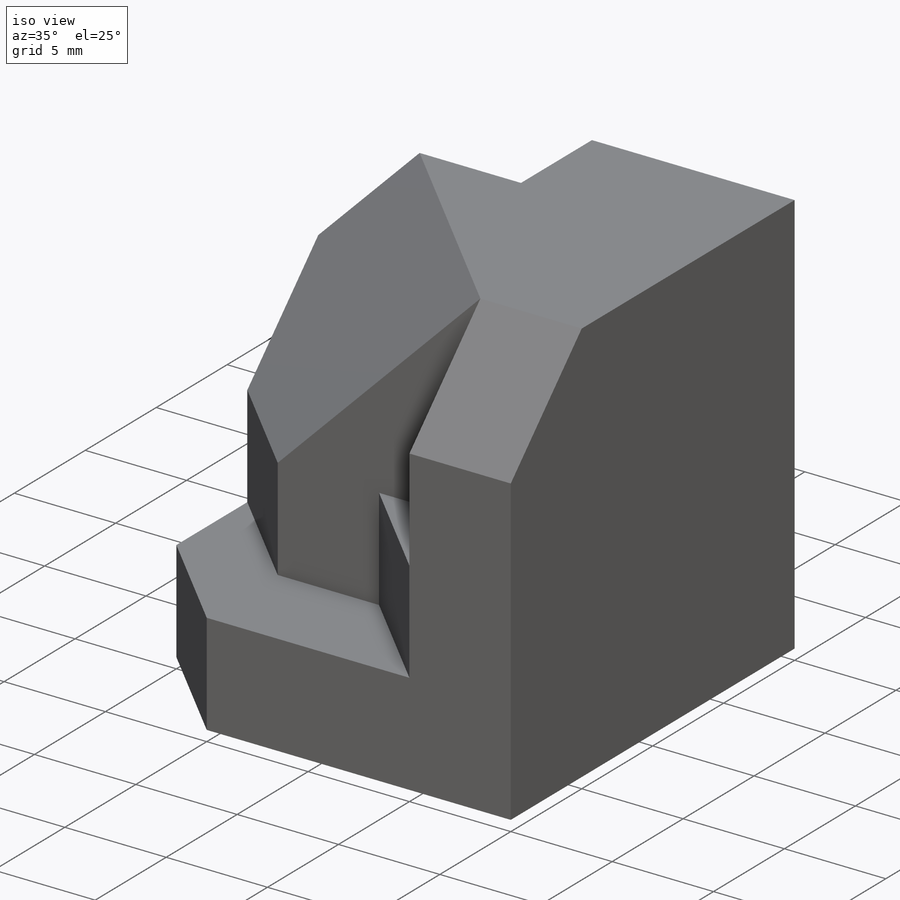
[diagram: iso view]
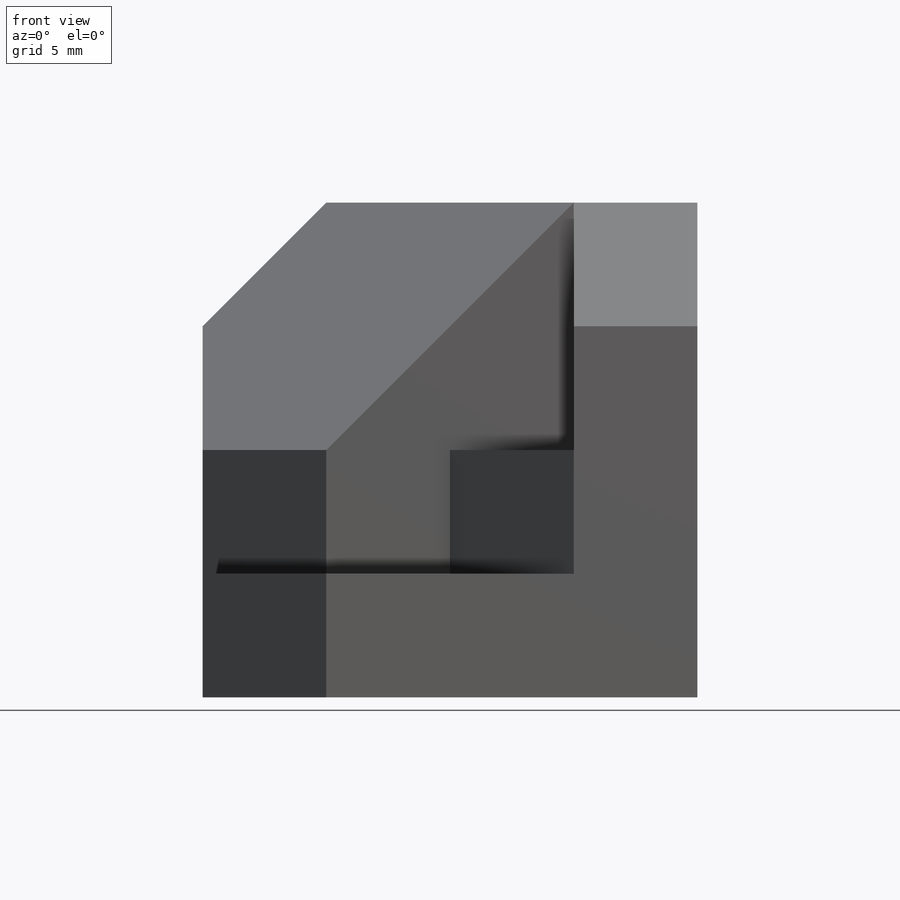
[diagram: front view]
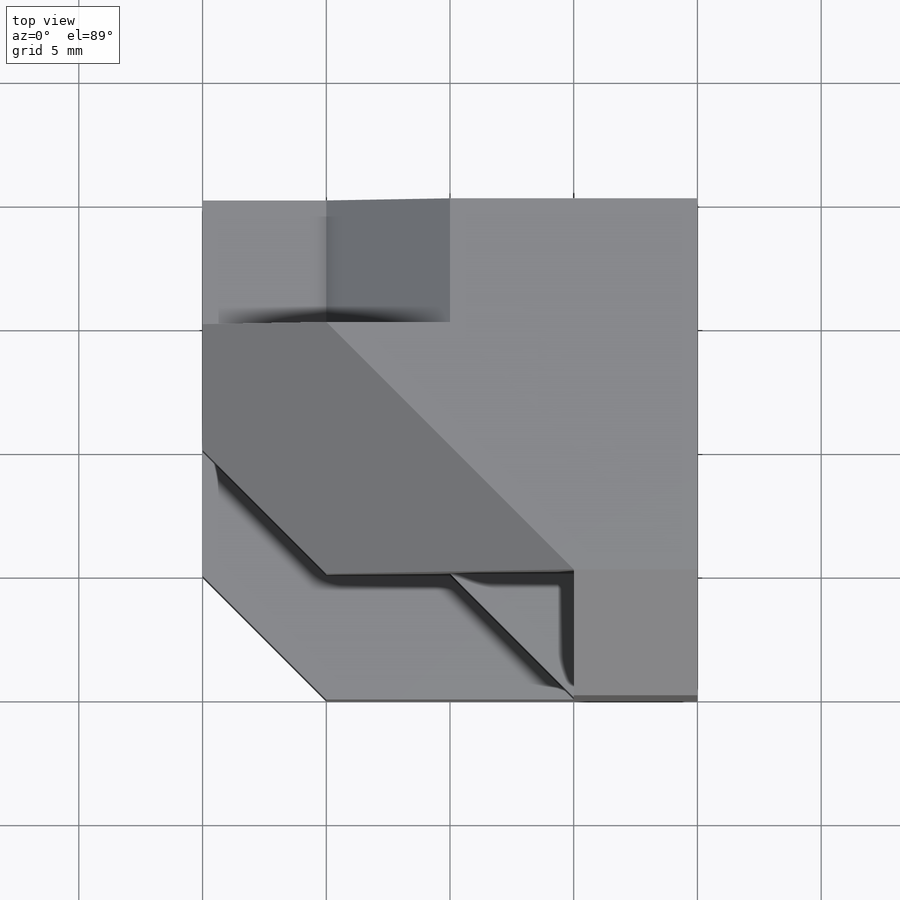
[diagram: top view]
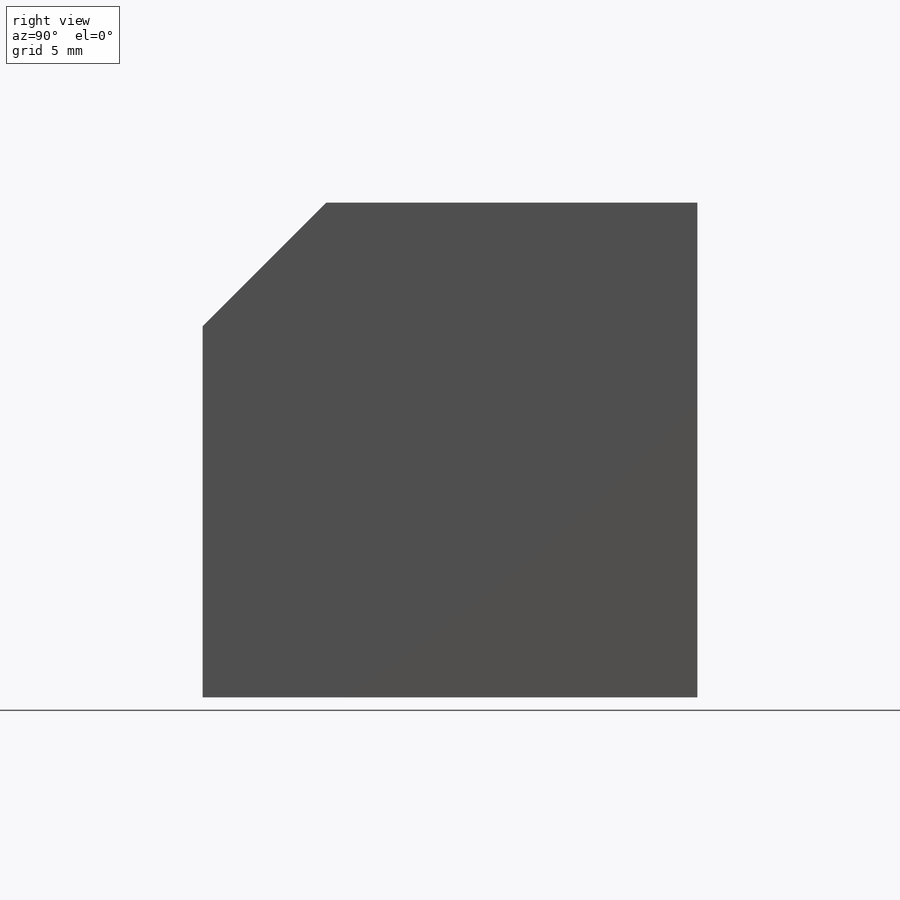
[diagram: right view]
SOLIDWORKS PART (.sldprt)
format: sldprt  version: not decoded by parser v0  size: 239,616 bytes
history: native  units: mm
features: sketch x10, extrude x7, cut_extrude x3, material x1, plane x1 (+13 scaffold rows collapsed)
feature tree (35):
  scaffold x13  (default folders/planes/origin — collapsed)
  material  "Material <not specified>"
  sketch  "Sketch2"  dims[D1=5.0mm D2=5.0mm D3=10.0mm D4=15.0mm D5=5.0mm]
  extrude  "Boss-Extrude2"  Depth=20mm
  sketch  "Sketch3"
  extrude  "Boss-Extrude4"  Depth=5mm
  sketch  "Sketch4"  dims[D1=5.0mm]
  cut_extrude  "Cut-Extrude1"  Depth=5mm
  sketch  "Sketch5"
  extrude  "Boss-Extrude5"  Depth=5mm
  sketch  "Sketch6"  dims[D1=5.0mm D2=5.0mm]
  cut_extrude  "Cut-Extrude2"  Depth=5mm
  sketch  "Sketch7"
  extrude  "Boss-Extrude6"  Depth=5mm
  plane  "Plane1"
  sketch  "Sketch8"  dims[D1=5.0mm D2=10.0mm D3=5.0mm]
  extrude  "Boss-Extrude7"  Depth=20mm
  sketch  "3DSketch1"  dims[D1=5.0mm D2=10.0mm D3=10.0mm]
  cut_extrude  "Cut-Extrude3"  Depth=20mm
  sketch  "Sketch9"  dims[D1=5.0mm D2=10.0mm]
  extrude  "Boss-Extrude8"  Depth=5mm
  sketch  "Sketch10"  dims[D1=5.0mm]
  extrude  "Boss-Extrude9"  Depth=5mm
decode coverage: 17 of 20 modeling features carry decoded parameters
note: suppression state not decoded; provenance and decode notes live in map.json
